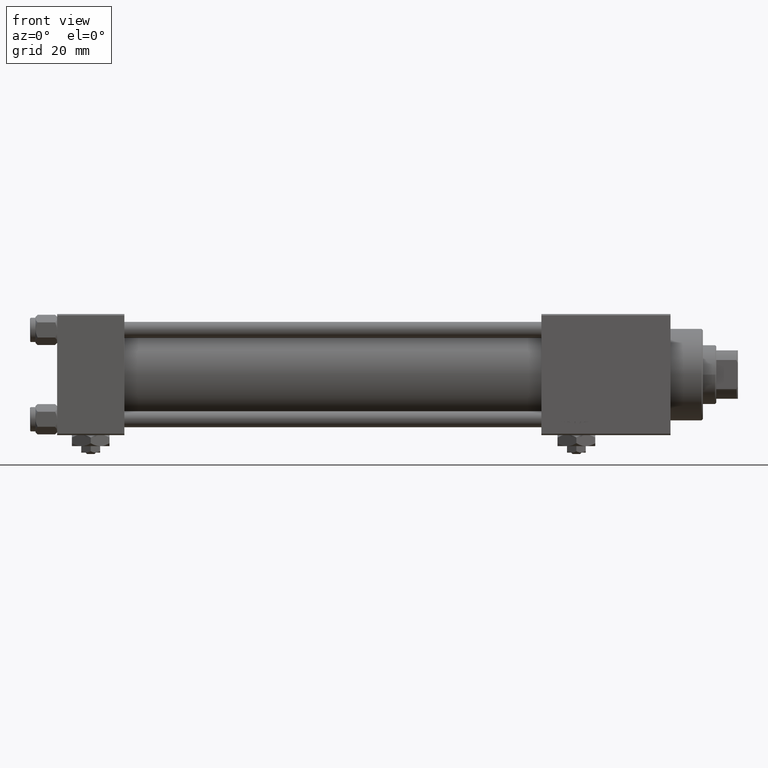
[diagram: clean part render]
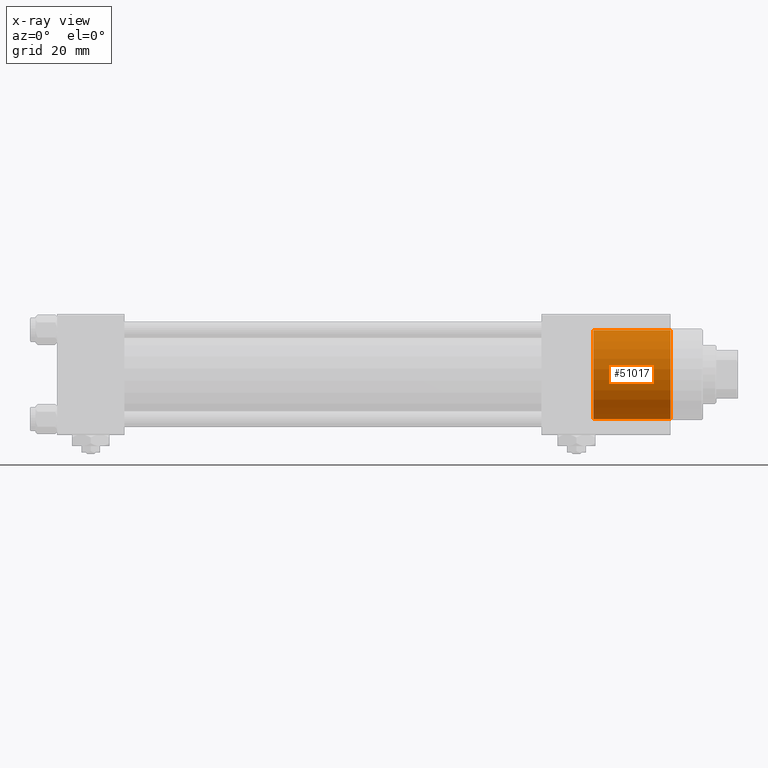
[diagram: x-ray — body ghosted, one internal face saturated and labeled with its STEP entity id]
A machine part, front view, then the same camera in x-ray: the body is ghosted and one INTERNAL B-rep face — a face not visible from any outside direction — is saturated and labeled: STEP entity #51017.
In plain terms, the highlighted cylindrical surface (partial cylindrical patch) has radius 16.5 mm, axis along (-1, -0, -0).
Its self-contained STEP definition (entity closure, byte-faithful):
#2316 = ORIENTED_EDGE ( 'NONE', *, *, #23581, .T. ) ;
#3148 = CARTESIAN_POINT ( 'NONE',  ( 16.50000000000000000, 2.020667218593133100E-15, 28.69999999999999929 ) ) ;
#4094 = CARTESIAN_POINT ( 'NONE',  ( -16.50000000000000000, 0.000000000000000000, 28.69999999999999929 ) ) ;
#4626 = ORIENTED_EDGE ( 'NONE', *, *, #33878, .F. ) ;
#5469 = LINE ( 'NONE', #34141, #8902 ) ;
#5601 = CIRCLE ( 'NONE', #41852, 16.50000000000000000 ) ;
#8902 = VECTOR ( 'NONE', #13034, 1000.000000000000000 ) ;
#13034 = DIRECTION ( 'NONE',  ( -0.000000000000000000, -0.000000000000000000, -1.000000000000000000 ) ) ;
#14440 = DIRECTION ( 'NONE',  ( 1.000000000000000000, 0.000000000000000000, 0.000000000000000000 ) ) ;
#15562 = DIRECTION ( 'NONE',  ( -0.000000000000000000, -0.000000000000000000, -1.000000000000000000 ) ) ;
#17410 = VERTEX_POINT ( 'NONE', #23400 ) ;
#20843 = CARTESIAN_POINT ( 'NONE',  ( 0.000000000000000000, 0.000000000000000000, 28.69999999999999929 ) ) ;
#21587 = ORIENTED_EDGE ( 'NONE', *, *, #40145, .F. ) ;
#21974 = EDGE_CURVE ( 'NONE', #23556, #34649, #5469, .T. ) ;
#23400 = CARTESIAN_POINT ( 'NONE',  ( 16.50000000000000000, 2.020667218593133100E-15, 0.000000000000000000 ) ) ;
#23556 = VERTEX_POINT ( 'NONE', #4094 ) ;
#23581 = EDGE_CURVE ( 'NONE', #34649, #17410, #5601, .T. ) ;
#24631 = CARTESIAN_POINT ( 'NONE',  ( 16.50000000000000000, 2.020667218593133100E-15, 28.69999999999999929 ) ) ;
#25448 = FACE_OUTER_BOUND ( 'NONE', #49574, .T. ) ;
#26247 = AXIS2_PLACEMENT_3D ( 'NONE', #47749, #47483, #14440 ) ;
#27978 = CIRCLE ( 'NONE', #26247, 16.50000000000000000 ) ;
#31281 = LINE ( 'NONE', #3148, #52114 ) ;
#33554 = DIRECTION ( 'NONE',  ( -1.000000000000000000, 0.000000000000000000, 0.000000000000000000 ) ) ;
#33878 = EDGE_CURVE ( 'NONE', #39650, #17410, #31281, .T. ) ;
#34141 = CARTESIAN_POINT ( 'NONE',  ( -16.50000000000000000, 0.000000000000000000, 28.69999999999999929 ) ) ;
#34649 = VERTEX_POINT ( 'NONE', #39931 ) ;
#37905 = CARTESIAN_POINT ( 'NONE',  ( 0.000000000000000000, 0.000000000000000000, 0.000000000000000000 ) ) ;
#39650 = VERTEX_POINT ( 'NONE', #24631 ) ;
#39931 = CARTESIAN_POINT ( 'NONE',  ( -16.50000000000000000, 0.000000000000000000, 0.000000000000000000 ) ) ;
#40145 = EDGE_CURVE ( 'NONE', #23556, #39650, #27978, .T. ) ;
#41687 = DIRECTION ( 'NONE',  ( -0.000000000000000000, -0.000000000000000000, -1.000000000000000000 ) ) ;
#41852 = AXIS2_PLACEMENT_3D ( 'NONE', #37905, #41955, #49579 ) ;
#41955 = DIRECTION ( 'NONE',  ( 0.000000000000000000, 0.000000000000000000, 1.000000000000000000 ) ) ;
#43041 = ORIENTED_EDGE ( 'NONE', *, *, #21974, .T. ) ;
#45235 = CYLINDRICAL_SURFACE ( 'NONE', #49121, 16.50000000000000000 ) ;
#47483 = DIRECTION ( 'NONE',  ( 0.000000000000000000, 0.000000000000000000, 1.000000000000000000 ) ) ;
#47749 = CARTESIAN_POINT ( 'NONE',  ( 0.000000000000000000, 0.000000000000000000, 28.69999999999999929 ) ) ;
#49121 = AXIS2_PLACEMENT_3D ( 'NONE', #20843, #41687, #33554 ) ;
#49574 = EDGE_LOOP ( 'NONE', ( #4626, #21587, #43041, #2316 ) ) ;
#49579 = DIRECTION ( 'NONE',  ( 1.000000000000000000, 0.000000000000000000, 0.000000000000000000 ) ) ;
#51017 = ADVANCED_FACE ( 'NONE', ( #25448 ), #45235, .T. ) ;
#52114 = VECTOR ( 'NONE', #15562, 1000.000000000000000 ) ;